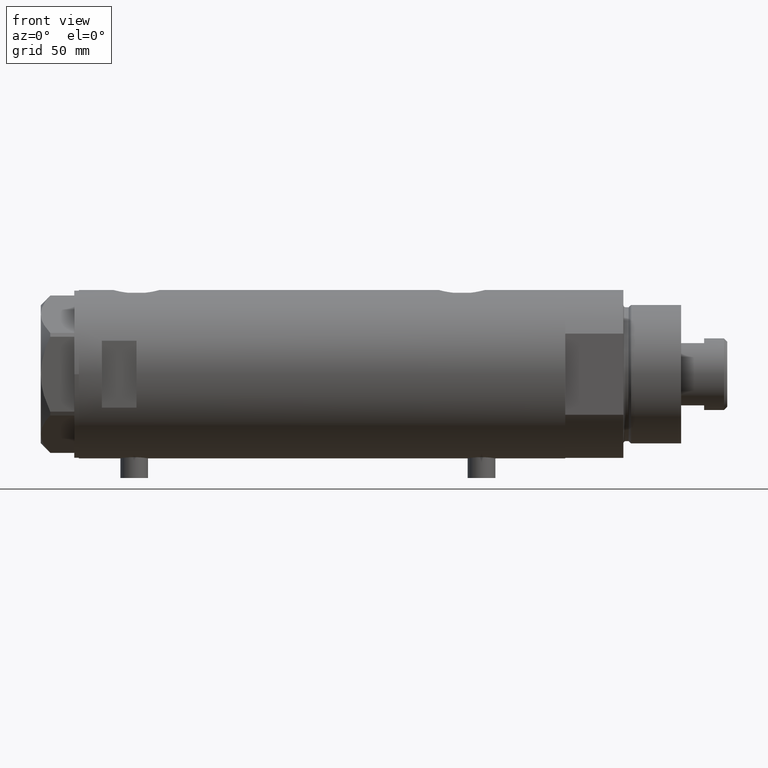
[diagram: clean part render]
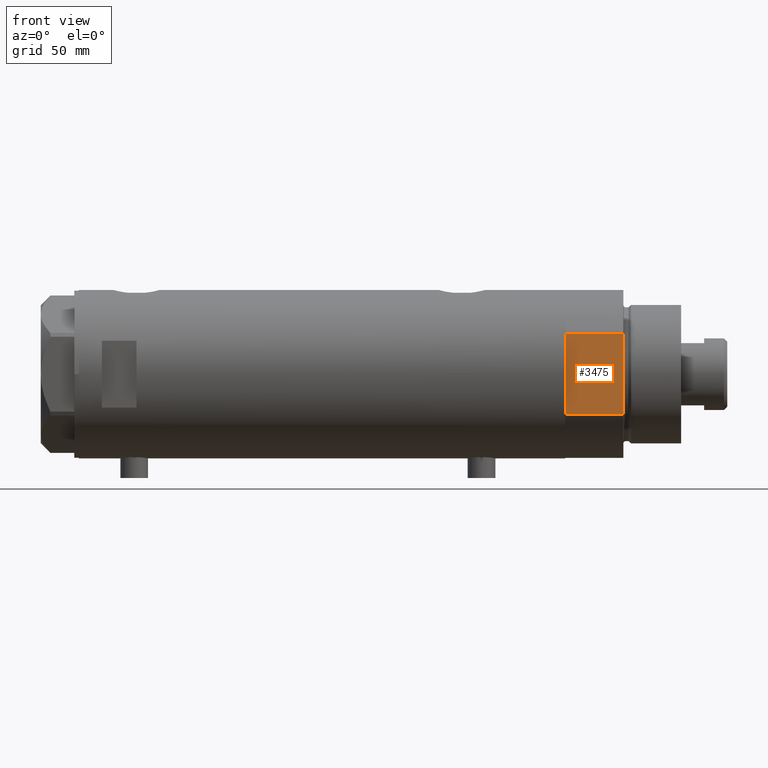
[diagram: same view with one face highlighted and labeled with its STEP entity id]
A machine part, front view. The second image highlights one B-rep face of the part: STEP entity #3475.
In plain terms, the highlighted planar face has unit normal (-0, 1, 0).
Its self-contained STEP definition (entity closure, byte-faithful):
#72 = VECTOR ( 'NONE', #730, 1000.000000000000000 ) ;
#82 = CARTESIAN_POINT ( 'NONE',  ( 0.000000000000000000, -32.00000000000000000, 0.000000000000000000 ) ) ;
#335 = CARTESIAN_POINT ( 'NONE',  ( -17.55704986607943496, -32.00000000000000000, 0.000000000000000000 ) ) ;
#426 = VERTEX_POINT ( 'NONE', #1239 ) ;
#730 = DIRECTION ( 'NONE',  ( -1.000000000000000000, -0.000000000000000000, -0.000000000000000000 ) ) ;
#748 = VECTOR ( 'NONE', #2421, 1000.000000000000000 ) ;
#1037 = VERTEX_POINT ( 'NONE', #82 ) ;
#1057 = ORIENTED_EDGE ( 'NONE', *, *, #1885, .T. ) ;
#1102 = EDGE_LOOP ( 'NONE', ( #1057, #2406, #1809, #4210, #4416 ) ) ;
#1239 = CARTESIAN_POINT ( 'NONE',  ( 17.55704986607943496, -32.00000000000000000, 25.19999999999999929 ) ) ;
#1248 = PLANE ( 'NONE',  #2763 ) ;
#1271 = DIRECTION ( 'NONE',  ( -0.000000000000000000, 1.000000000000000000, 0.000000000000000000 ) ) ;
#1354 = LINE ( 'NONE', #4483, #748 ) ;
#1406 = CARTESIAN_POINT ( 'NONE',  ( -17.55704986607943141, -32.00000000000000000, 0.000000000000000000 ) ) ;
#1422 = VERTEX_POINT ( 'NONE', #335 ) ;
#1445 = CARTESIAN_POINT ( 'NONE',  ( 17.55704986607943141, -32.00000000000000000, 0.000000000000000000 ) ) ;
#1502 = DIRECTION ( 'NONE',  ( -0.000000000000000000, -0.000000000000000000, 1.000000000000000000 ) ) ;
#1809 = ORIENTED_EDGE ( 'NONE', *, *, #3700, .F. ) ;
#1835 = CARTESIAN_POINT ( 'NONE',  ( -17.55704986607943141, -32.00000000000000000, 25.19999999999999929 ) ) ;
#1841 = EDGE_CURVE ( 'NONE', #3335, #1037, #3536, .T. ) ;
#1885 = EDGE_CURVE ( 'NONE', #426, #1916, #3884, .T. ) ;
#1916 = VERTEX_POINT ( 'NONE', #2120 ) ;
#2120 = CARTESIAN_POINT ( 'NONE',  ( -17.55704986607943496, -32.00000000000000000, 25.19999999999999929 ) ) ;
#2269 = CARTESIAN_POINT ( 'NONE',  ( 17.55704986607943141, -32.00000000000000000, 0.000000000000000000 ) ) ;
#2329 = CARTESIAN_POINT ( 'NONE',  ( -17.55704986607943141, -32.00000000000000000, 0.000000000000000000 ) ) ;
#2403 = VECTOR ( 'NONE', #3224, 1000.000000000000000 ) ;
#2406 = ORIENTED_EDGE ( 'NONE', *, *, #2885, .F. ) ;
#2421 = DIRECTION ( 'NONE',  ( -1.000000000000000000, -0.000000000000000000, -0.000000000000000000 ) ) ;
#2606 = FACE_OUTER_BOUND ( 'NONE', #1102, .T. ) ;
#2763 = AXIS2_PLACEMENT_3D ( 'NONE', #4373, #1271, #2944 ) ;
#2885 = EDGE_CURVE ( 'NONE', #1422, #1916, #4047, .T. ) ;
#2912 = VECTOR ( 'NONE', #3712, 1000.000000000000000 ) ;
#2944 = DIRECTION ( 'NONE',  ( 0.000000000000000000, -0.000000000000000000, 1.000000000000000000 ) ) ;
#3224 = DIRECTION ( 'NONE',  ( -1.000000000000000000, -0.000000000000000000, -0.000000000000000000 ) ) ;
#3263 = LINE ( 'NONE', #2269, #3380 ) ;
#3335 = VERTEX_POINT ( 'NONE', #1445 ) ;
#3380 = VECTOR ( 'NONE', #1502, 1000.000000000000000 ) ;
#3475 = ADVANCED_FACE ( 'NONE', ( #2606 ), #1248, .F. ) ;
#3536 = LINE ( 'NONE', #1406, #72 ) ;
#3700 = EDGE_CURVE ( 'NONE', #1037, #1422, #1354, .T. ) ;
#3712 = DIRECTION ( 'NONE',  ( -0.000000000000000000, -0.000000000000000000, 1.000000000000000000 ) ) ;
#3884 = LINE ( 'NONE', #1835, #2403 ) ;
#3927 = EDGE_CURVE ( 'NONE', #3335, #426, #3263, .T. ) ;
#4047 = LINE ( 'NONE', #2329, #2912 ) ;
#4210 = ORIENTED_EDGE ( 'NONE', *, *, #1841, .F. ) ;
#4373 = CARTESIAN_POINT ( 'NONE',  ( -17.55704986607943141, -32.00000000000000000, 0.000000000000000000 ) ) ;
#4416 = ORIENTED_EDGE ( 'NONE', *, *, #3927, .T. ) ;
#4483 = CARTESIAN_POINT ( 'NONE',  ( -17.55704986607943141, -32.00000000000000000, 0.000000000000000000 ) ) ;